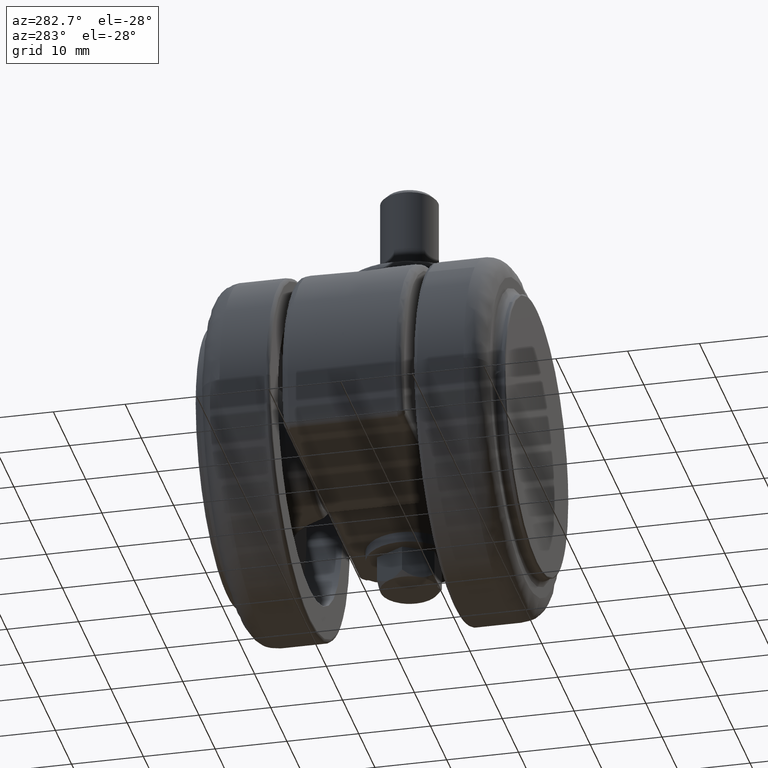
[diagram: clean part render]
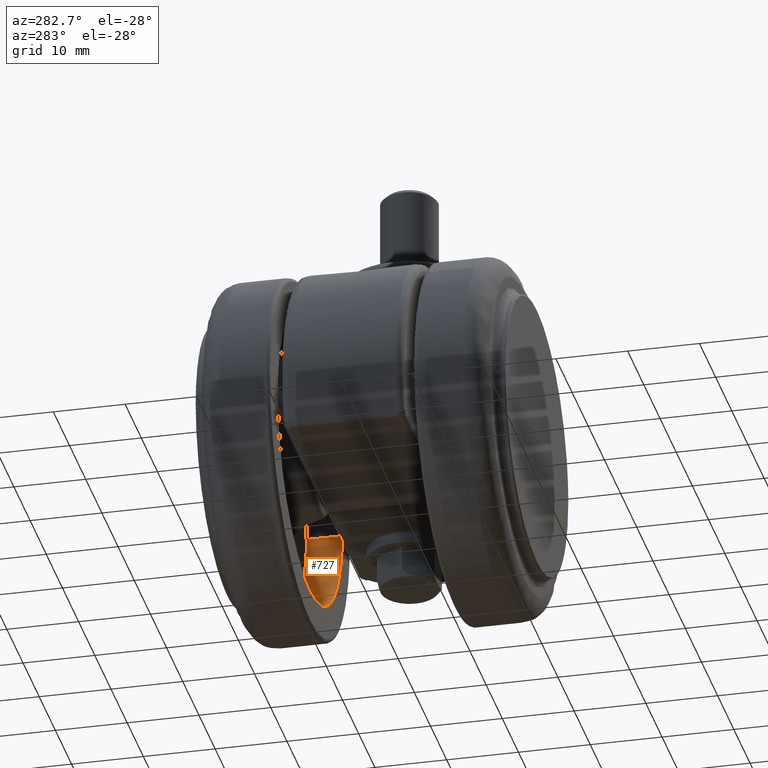
[diagram: same view with one face highlighted and labeled with its STEP entity id]
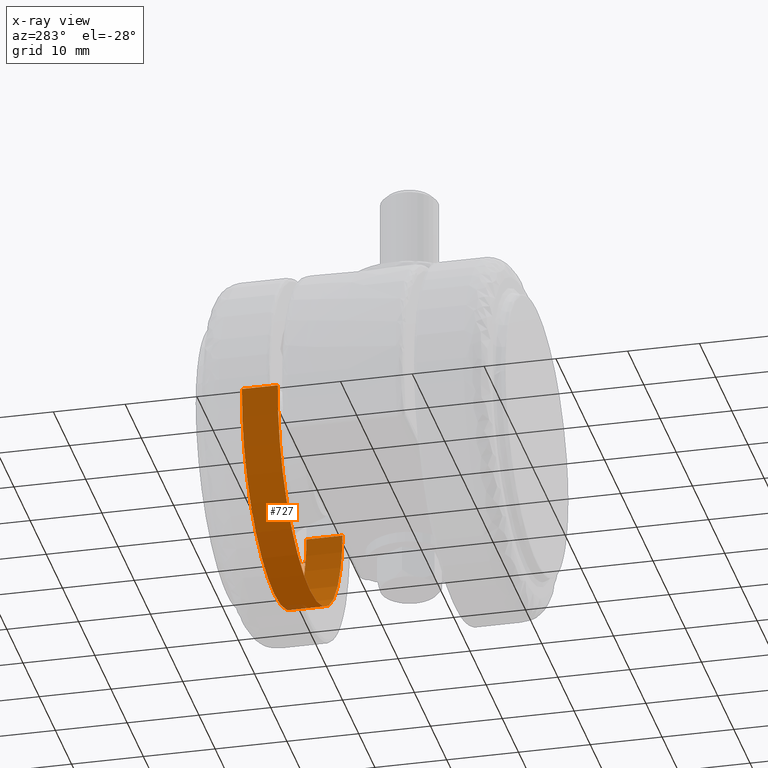
[diagram: x-ray of the same camera — body ghosted, the highlighted face saturated]
A machine part, auxiliary view. The second image highlights one B-rep face of the part: STEP entity #727.
The next image is the same camera in x-ray: the body ghosted, the highlighted face saturated — about 1% of this face is hidden behind the body in this view.
In plain terms, the highlighted face is a freeform B-spline surface patch.
Its self-contained STEP definition (entity closure, byte-faithful):
#590=CARTESIAN_POINT('',(-19.962697520205829,14.999999999999970,1.220945418977272));
#591=VERTEX_POINT('',#590);
#605=CARTESIAN_POINT('',(1.836910E-015,15.0,-20.0));
#606=VERTEX_POINT('',#605);
#607=CARTESIAN_POINT('',(-19.962697520205836,14.999999999999975,1.220945418977272));
#608=CARTESIAN_POINT('',(-19.999999999984105,14.999999999999973,0.611042544542190));
#609=CARTESIAN_POINT('',(-19.999999999984350,14.999999999999970,-9.570813E-013));
#610=CARTESIAN_POINT('',(-19.999999999992419,14.999999999999982,-20.000000000000465));
#611=CARTESIAN_POINT('',(1.836910E-015,15.0,-20.0));
#619=(BOUNDED_CURVE()B_SPLINE_CURVE(2,(#607,#608,#609,#610,#611),.UNSPECIFIED.,.F.,.U.)B_SPLINE_CURVE_WITH_KNOTS((3,2,3),(0.239333181541483,0.250000000000000,0.500000000000000),.UNSPECIFIED.)CURVE()GEOMETRIC_REPRESENTATION_ITEM()RATIONAL_B_SPLINE_CURVE((0.976072511674257,0.987503044828744,1.0,0.707106781186548,1.0))REPRESENTATION_ITEM(''));
#620=EDGE_CURVE('',#591,#606,#619,.T.);
#622=CARTESIAN_POINT('',(19.962697520205840,14.999999999999970,-1.220945418977275));
#623=VERTEX_POINT('',#622);
#624=CARTESIAN_POINT('',(1.836910E-015,15.0,-20.0));
#625=CARTESIAN_POINT('',(18.814145294733585,14.999999999999977,-19.999999999999510));
#626=CARTESIAN_POINT('',(19.962697520205843,14.999999999999964,-1.220945418977275));
#634=(BOUNDED_CURVE()B_SPLINE_CURVE(2,(#624,#625,#626),.UNSPECIFIED.,.F.,.U.)B_SPLINE_CURVE_WITH_KNOTS((3,3),(0.500000000000000,0.739333181541483),.UNSPECIFIED.)CURVE()GEOMETRIC_REPRESENTATION_ITEM()RATIONAL_B_SPLINE_CURVE((1.0,0.719603736357803,0.976072511674257))REPRESENTATION_ITEM(''));
#635=EDGE_CURVE('',#606,#623,#634,.T.);
#661=CARTESIAN_POINT('',(-19.962695968437330,15.125000000000000,1.220970790697140));
#662=CARTESIAN_POINT('',(-21.183666759134471,15.124999999999998,-18.741725177740186));
#663=CARTESIAN_POINT('',(-1.220970790697138,15.125000000000000,-19.962695968437330));
#664=CARTESIAN_POINT('',(18.741725177740204,15.124999999999998,-21.183666759134471));
#665=CARTESIAN_POINT('',(19.962695968437341,15.125000000000000,-1.220970790697140));
#666=CARTESIAN_POINT('',(-19.962695968437330,9.871875000000001,1.220970790697140));
#667=CARTESIAN_POINT('',(-21.183666759134471,9.871875000000003,-18.741725177740186));
#668=CARTESIAN_POINT('',(-1.220970790697139,9.871874999999999,-19.962695968437330));
#669=CARTESIAN_POINT('',(18.741725177740186,9.871874999999998,-21.183666759134471));
#670=CARTESIAN_POINT('',(19.962695968437330,9.871874999999998,-1.220970790697140));
#678=(BOUNDED_SURFACE()B_SPLINE_SURFACE(2,1,((#661,#666),(#662,#667),(#663,#668),(#664,#669),(#665,#670)),.UNSPECIFIED.,.F.,.F.,.U.)B_SPLINE_SURFACE_WITH_KNOTS((3,2,3),(2,2),(0.0,33.137084989847587,66.274169979695188),(0.0,5.253125000000003),.UNSPECIFIED.)GEOMETRIC_REPRESENTATION_ITEM()RATIONAL_B_SPLINE_SURFACE(((1.0,1.0),(0.707106781186548,0.707106781186548),(1.0,1.0),(0.707106781186548,0.707106781186548),(1.0,1.0)))REPRESENTATION_ITEM('')SURFACE());
#679=ORIENTED_EDGE('',*,*,#620,.F.);
#680=CARTESIAN_POINT('',(-19.962697501510871,10.0,1.220945724649967));
#681=VERTEX_POINT('',#680);
#682=CARTESIAN_POINT('',(-19.962697520205829,14.999999999999970,1.220945418977272));
#683=CARTESIAN_POINT('',(-19.962697501510871,10.0,1.220945724649967));
#684=QUASI_UNIFORM_CURVE('',1,(#682,#683),.UNSPECIFIED.,.F.,.U.);
#685=EDGE_CURVE('',#591,#681,#684,.T.);
#686=ORIENTED_EDGE('',*,*,#685,.T.);
#687=CARTESIAN_POINT('',(1.224606E-015,10.0,-20.0));
#688=VERTEX_POINT('',#687);
#689=CARTESIAN_POINT('',(-19.962697501510863,10.000000000000002,1.220945724649968));
#690=CARTESIAN_POINT('',(-19.999999999984482,10.000000000000004,0.611042697807070));
#691=CARTESIAN_POINT('',(-19.999999999984730,10.0,-9.353196E-013));
#692=CARTESIAN_POINT('',(-19.999999999992600,10.000000000000004,-20.000000000000451));
#693=CARTESIAN_POINT('',(1.224606E-015,10.0,-20.0));
#701=(BOUNDED_CURVE()B_SPLINE_CURVE(2,(#689,#690,#691,#692,#693),.UNSPECIFIED.,.F.,.U.)B_SPLINE_CURVE_WITH_KNOTS((3,2,3),(0.239333178899412,0.250000000000000,0.500000000000000),.UNSPECIFIED.)CURVE()GEOMETRIC_REPRESENTATION_ITEM()RATIONAL_B_SPLINE_CURVE((0.976072506011785,0.987503041733366,1.0,0.707106781186548,1.0))REPRESENTATION_ITEM(''));
#702=EDGE_CURVE('',#681,#688,#701,.T.);
#703=ORIENTED_EDGE('',*,*,#702,.T.);
#704=CARTESIAN_POINT('',(19.962697501510871,9.999999999999998,-1.220945724649964));
#705=VERTEX_POINT('',#704);
#706=CARTESIAN_POINT('',(1.224606E-015,10.0,-20.0));
#707=CARTESIAN_POINT('',(18.814145006109651,9.999999999999996,-19.999999999999520));
#708=CARTESIAN_POINT('',(19.962697501510871,10.000000000000002,-1.220945724649964));
#716=(BOUNDED_CURVE()B_SPLINE_CURVE(2,(#706,#707,#708),.UNSPECIFIED.,.F.,.U.)B_SPLINE_CURVE_WITH_KNOTS((3,3),(0.500000000000000,0.739333178899412),.UNSPECIFIED.)CURVE()GEOMETRIC_REPRESENTATION_ITEM()RATIONAL_B_SPLINE_CURVE((1.0,0.719603739453182,0.976072506011785))REPRESENTATION_ITEM(''));
#717=EDGE_CURVE('',#688,#705,#716,.T.);
#718=ORIENTED_EDGE('',*,*,#717,.T.);
#719=CARTESIAN_POINT('',(19.962697520205840,14.999999999999970,-1.220945418977275));
#720=CARTESIAN_POINT('',(19.962697501510871,9.999999999999998,-1.220945724649964));
#721=QUASI_UNIFORM_CURVE('',1,(#719,#720),.UNSPECIFIED.,.F.,.U.);
#722=EDGE_CURVE('',#623,#705,#721,.T.);
#723=ORIENTED_EDGE('',*,*,#722,.F.);
#724=ORIENTED_EDGE('',*,*,#635,.F.);
#725=EDGE_LOOP('',(#679,#686,#703,#718,#723,#724));
#726=FACE_OUTER_BOUND('',#725,.T.);
#727=ADVANCED_FACE('',(#726),#678,.F.);